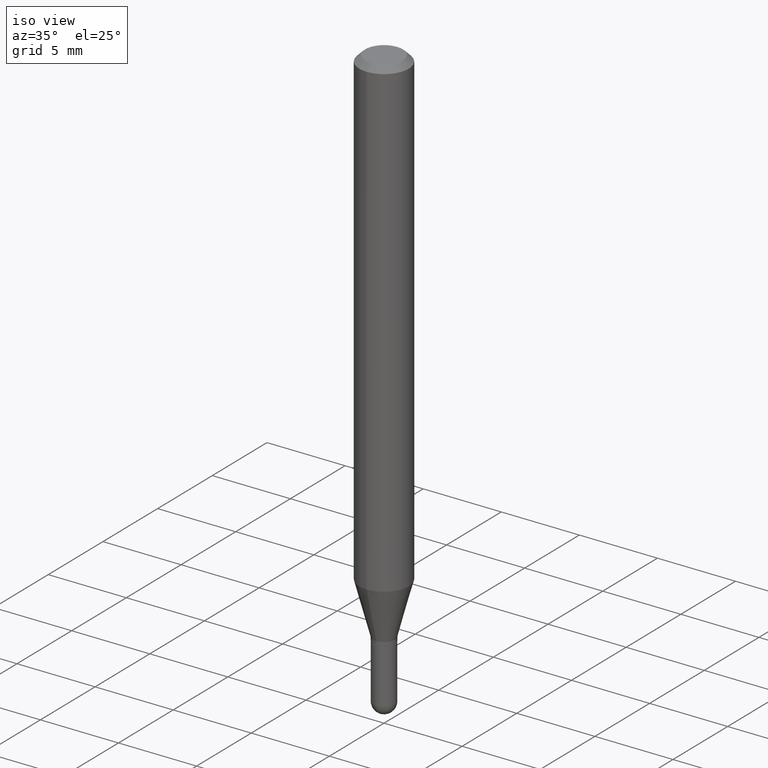
[diagram: clean part render]
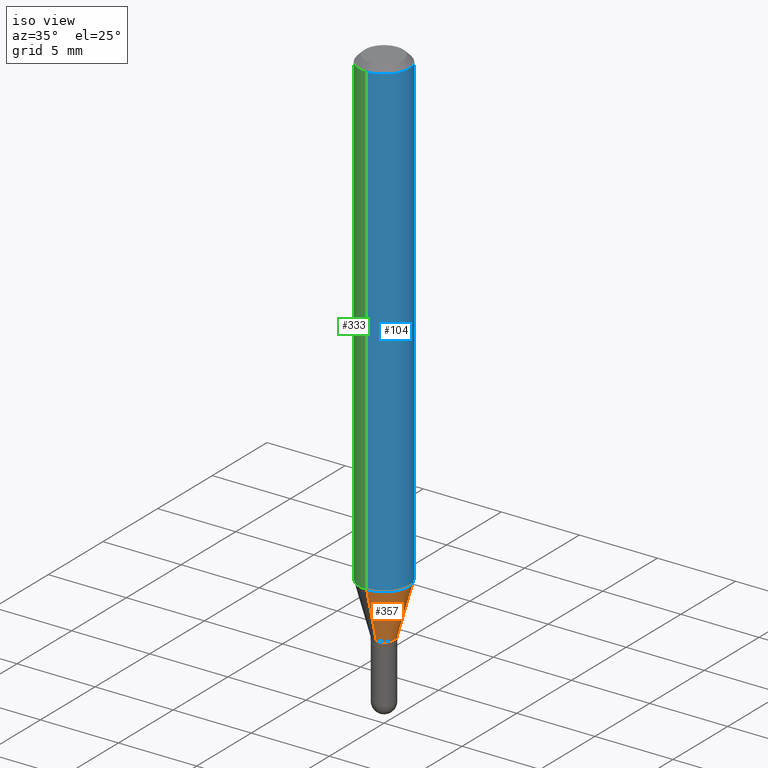
[diagram: same view with three faces highlighted in distinct colors, each labeled with its STEP entity id]
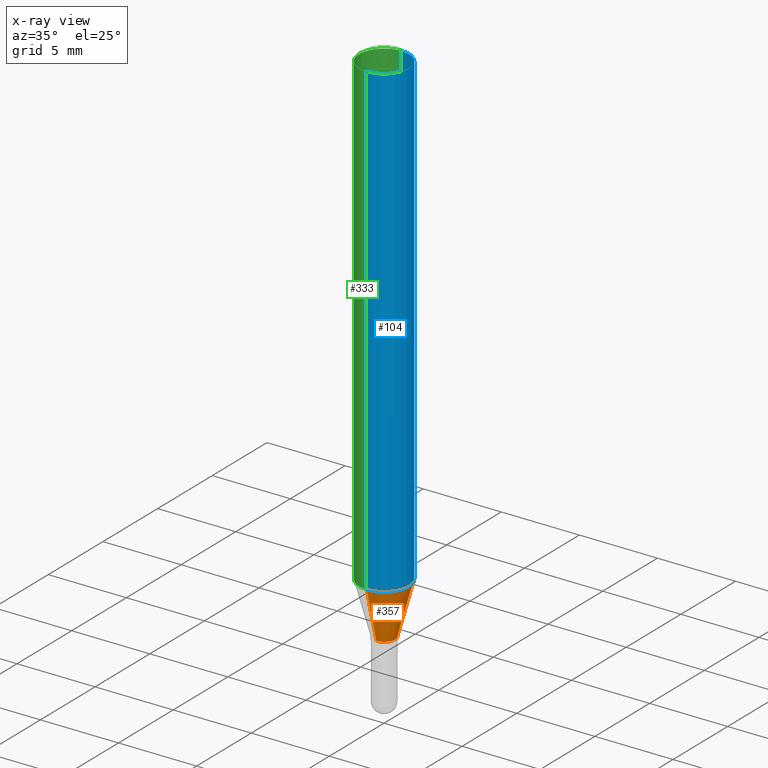
[diagram: x-ray of the same camera — body ghosted, the three highlighted faces saturated]
A machine part, iso view with three faces highlighted in distinct colors.
The next image is the same camera in x-ray (body ghosted, the three faces saturated) — at least one of them is partly hidden behind the body in this view.
Their STEP definitions:

[orange] entity #357 — the highlighted conical surface has half-angle 15 deg.
#5 = AXIS2_PLACEMENT_3D ( 'NONE', #184, #151, #292 ) ;
#14 = CARTESIAN_POINT ( 'NONE',  ( 3.240249888014285312E-29, -4.626207446974673812E-15, -1.325000000000000400 ) ) ;
#16 = ORIENTED_EDGE ( 'NONE', *, *, #431, .T. ) ;
#31 = DIRECTION ( 'NONE',  ( 1.839019923739605048E-15, 0.2588190451025256245, 0.9659258262890669799 ) ) ;
#49 = LINE ( 'NONE', #51, #285 ) ;
#51 = CARTESIAN_POINT ( 'NONE',  ( -1.920314736363393602E-16, -0.02750000000000454858, -1.325000000000000400 ) ) ;
#97 = EDGE_CURVE ( 'NONE', #371, #273, #49, .T. ) ;
#113 = ORIENTED_EDGE ( 'NONE', *, *, #97, .F. ) ;
#147 = DIRECTION ( 'NONE',  ( -2.445471613595686060E-29, 3.491477318471450825E-15, 1.000000000000000000 ) ) ;
#151 = DIRECTION ( 'NONE',  ( -2.445471613595686060E-29, 3.491477318471450825E-15, 1.000000000000000000 ) ) ;
#155 = CARTESIAN_POINT ( 'NONE',  ( 1.953992523340593531E-16, 0.02749999999999529210, -1.325000000000000400 ) ) ;
#164 = CONICAL_SURFACE ( 'NONE', #481, 0.02749999999999992034, 0.2617993877991509621 ) ;
#169 = ORIENTED_EDGE ( 'NONE', *, *, #501, .T. ) ;
#179 = DIRECTION ( 'NONE',  ( -2.445471613595686060E-29, 3.491477318471450825E-15, 1.000000000000000000 ) ) ;
#184 = CARTESIAN_POINT ( 'NONE',  ( 2.920818037150057655E-29, -4.170144470864333140E-15, -1.194378221735090229 ) ) ;
#218 = CARTESIAN_POINT ( 'NONE',  ( -4.364351673553625802E-16, -0.06250000000000419109, -1.194378221735090007 ) ) ;
#221 = LINE ( 'NONE', #155, #309 ) ;
#223 = CARTESIAN_POINT ( 'NONE',  ( 3.240249888014285312E-29, -4.626207446974673812E-15, -1.325000000000000400 ) ) ;
#228 = DIRECTION ( 'NONE',  ( -6.982962677686265922E-15, -1.000000000000000000, 0.000000000000000000 ) ) ;
#270 = CIRCLE ( 'NONE', #403, 0.02749999999999992034 ) ;
#273 = VERTEX_POINT ( 'NONE', #218 ) ;
#281 = EDGE_LOOP ( 'NONE', ( #169, #16, #435, #113 ) ) ;
#285 = VECTOR ( 'NONE', #312, 39.37007874015748854 ) ;
#292 = DIRECTION ( 'NONE',  ( -6.982962677686265922E-15, -1.000000000000000000, 4.370956789862821150E-15 ) ) ;
#309 = VECTOR ( 'NONE', #31, 39.37007874015748143 ) ;
#312 = DIRECTION ( 'NONE',  ( -1.807323732225334872E-15, -0.2588190451025188521, 0.9659258262890687563 ) ) ;
#344 = VERTEX_POINT ( 'NONE', #485 ) ;
#352 = FACE_OUTER_BOUND ( 'NONE', #281, .T. ) ;
#357 = ADVANCED_FACE ( 'NONE', ( #352 ), #164, .T. ) ;
#371 = VERTEX_POINT ( 'NONE', #486 ) ;
#391 = CIRCLE ( 'NONE', #5, 0.06250000000000000000 ) ;
#403 = AXIS2_PLACEMENT_3D ( 'NONE', #223, #147, #228 ) ;
#419 = EDGE_CURVE ( 'NONE', #273, #484, #391, .T. ) ;
#431 = EDGE_CURVE ( 'NONE', #344, #484, #221, .T. ) ;
#435 = ORIENTED_EDGE ( 'NONE', *, *, #419, .F. ) ;
#441 = DIRECTION ( 'NONE',  ( -6.982962677686265922E-15, -1.000000000000000000, 0.000000000000000000 ) ) ;
#481 = AXIS2_PLACEMENT_3D ( 'NONE', #14, #179, #441 ) ;
#484 = VERTEX_POINT ( 'NONE', #494 ) ;
#485 = CARTESIAN_POINT ( 'NONE',  ( 3.197442310920756402E-16, 0.02749999999999529210, -1.325000000000000400 ) ) ;
#486 = CARTESIAN_POINT ( 'NONE',  ( -1.920314736363393602E-16, -0.02750000000000454858, -1.325000000000000400 ) ) ;
#494 = CARTESIAN_POINT ( 'NONE',  ( 4.440892098500915082E-16, 0.06249999999999580891, -1.194378221735090451 ) ) ;
#501 = EDGE_CURVE ( 'NONE', #371, #344, #270, .T. ) ;

[blue] entity #104 — the highlighted cylindrical surface (edge-blend (fillet) strip) has radius 1.5875 mm, axis along (-0, 0, 1).
#5 = AXIS2_PLACEMENT_3D ( 'NONE', #184, #151, #292 ) ;
#13 = VERTEX_POINT ( 'NONE', #336 ) ;
#39 = CARTESIAN_POINT ( 'NONE',  ( 0.000000000000000000, 0.000000000000000000, 0.000000000000000000 ) ) ;
#82 = DIRECTION ( 'NONE',  ( -2.445471613595686060E-29, 3.491477318471450825E-15, 1.000000000000000000 ) ) ;
#96 = VERTEX_POINT ( 'NONE', #478 ) ;
#104 = ADVANCED_FACE ( 'NONE', ( #475 ), #265, .T. ) ;
#141 = EDGE_CURVE ( 'NONE', #484, #96, #340, .T. ) ;
#151 = DIRECTION ( 'NONE',  ( -2.445471613595686060E-29, 3.491477318471450825E-15, 1.000000000000000000 ) ) ;
#178 = CARTESIAN_POINT ( 'NONE',  ( -4.364351673553916201E-16, -0.06250000000000000000, 2.182173324044656766E-16 ) ) ;
#182 = LINE ( 'NONE', #178, #208 ) ;
#184 = CARTESIAN_POINT ( 'NONE',  ( 2.920818037150057655E-29, -4.170144470864333140E-15, -1.194378221735090229 ) ) ;
#208 = VECTOR ( 'NONE', #487, 39.37007874015748143 ) ;
#218 = CARTESIAN_POINT ( 'NONE',  ( -4.364351673553625802E-16, -0.06250000000000419109, -1.194378221735090007 ) ) ;
#222 = EDGE_CURVE ( 'NONE', #273, #13, #182, .T. ) ;
#232 = EDGE_LOOP ( 'NONE', ( #408, #305, #247, #244 ) ) ;
#244 = ORIENTED_EDGE ( 'NONE', *, *, #222, .F. ) ;
#247 = ORIENTED_EDGE ( 'NONE', *, *, #446, .F. ) ;
#256 = AXIS2_PLACEMENT_3D ( 'NONE', #504, #327, #295 ) ;
#265 = CYLINDRICAL_SURFACE ( 'NONE', #436, 0.06250000000000000000 ) ;
#273 = VERTEX_POINT ( 'NONE', #218 ) ;
#292 = DIRECTION ( 'NONE',  ( -6.982962677686265922E-15, -1.000000000000000000, 4.370956789862821150E-15 ) ) ;
#295 = DIRECTION ( 'NONE',  ( -6.982962677686265922E-15, -1.000000000000000000, 3.483106191921935554E-15 ) ) ;
#305 = ORIENTED_EDGE ( 'NONE', *, *, #141, .T. ) ;
#307 = VECTOR ( 'NONE', #348, 39.37007874015748143 ) ;
#311 = CARTESIAN_POINT ( 'NONE',  ( 4.440892098500625669E-16, 0.06250000000000000000, -2.182173324044656766E-16 ) ) ;
#327 = DIRECTION ( 'NONE',  ( -2.445471613595686060E-29, 3.491477318471450825E-15, 1.000000000000000000 ) ) ;
#336 = CARTESIAN_POINT ( 'NONE',  ( -4.364351673553912750E-16, -0.06250000000000005551, -0.01500000000000011047 ) ) ;
#340 = LINE ( 'NONE', #311, #307 ) ;
#348 = DIRECTION ( 'NONE',  ( -2.445471613595686060E-29, 3.491477318471451219E-15, 1.000000000000000000 ) ) ;
#391 = CIRCLE ( 'NONE', #5, 0.06250000000000000000 ) ;
#408 = ORIENTED_EDGE ( 'NONE', *, *, #419, .T. ) ;
#419 = EDGE_CURVE ( 'NONE', #273, #484, #391, .T. ) ;
#436 = AXIS2_PLACEMENT_3D ( 'NONE', #39, #82, #472 ) ;
#446 = EDGE_CURVE ( 'NONE', #13, #96, #470, .T. ) ;
#470 = CIRCLE ( 'NONE', #256, 0.06250000000000000000 ) ;
#472 = DIRECTION ( 'NONE',  ( -6.982962677686265922E-15, -1.000000000000000000, 3.491477318471450825E-15 ) ) ;
#475 = FACE_OUTER_BOUND ( 'NONE', #232, .T. ) ;
#478 = CARTESIAN_POINT ( 'NONE',  ( 4.440892098500920012E-16, 0.06249999999999995143, -0.01500000000000054588 ) ) ;
#484 = VERTEX_POINT ( 'NONE', #494 ) ;
#487 = DIRECTION ( 'NONE',  ( -2.445471613595686060E-29, 3.491477318471451219E-15, 1.000000000000000000 ) ) ;
#494 = CARTESIAN_POINT ( 'NONE',  ( 4.440892098500915082E-16, 0.06249999999999580891, -1.194378221735090451 ) ) ;
#504 = CARTESIAN_POINT ( 'NONE',  ( 3.668207420393609823E-31, -5.237215977707291288E-17, -0.01500000000000032904 ) ) ;

[green] entity #333 — the highlighted cylindrical surface (edge-blend (fillet) strip) has radius 1.5875 mm, axis along (-0, 0, 1).
#13 = VERTEX_POINT ( 'NONE', #336 ) ;
#20 = FACE_OUTER_BOUND ( 'NONE', #72, .T. ) ;
#22 = CYLINDRICAL_SURFACE ( 'NONE', #316, 0.06250000000000000000 ) ;
#36 = ORIENTED_EDGE ( 'NONE', *, *, #417, .F. ) ;
#72 = EDGE_LOOP ( 'NONE', ( #456, #493, #399, #36 ) ) ;
#96 = VERTEX_POINT ( 'NONE', #478 ) ;
#105 = DIRECTION ( 'NONE',  ( -2.445471613595686060E-29, 3.491477318471450825E-15, 1.000000000000000000 ) ) ;
#139 = DIRECTION ( 'NONE',  ( -2.445471613595686060E-29, 3.491477318471450825E-15, 1.000000000000000000 ) ) ;
#141 = EDGE_CURVE ( 'NONE', #484, #96, #340, .T. ) ;
#173 = DIRECTION ( 'NONE',  ( -6.982962677686265922E-15, -1.000000000000000000, 4.370956789862821150E-15 ) ) ;
#178 = CARTESIAN_POINT ( 'NONE',  ( -4.364351673553916201E-16, -0.06250000000000000000, 2.182173324044656766E-16 ) ) ;
#182 = LINE ( 'NONE', #178, #208 ) ;
#192 = EDGE_CURVE ( 'NONE', #484, #273, #219, .T. ) ;
#208 = VECTOR ( 'NONE', #487, 39.37007874015748143 ) ;
#216 = DIRECTION ( 'NONE',  ( -6.982962677686265922E-15, -1.000000000000000000, 3.491477318471450825E-15 ) ) ;
#218 = CARTESIAN_POINT ( 'NONE',  ( -4.364351673553625802E-16, -0.06250000000000419109, -1.194378221735090007 ) ) ;
#219 = CIRCLE ( 'NONE', #413, 0.06250000000000000000 ) ;
#222 = EDGE_CURVE ( 'NONE', #273, #13, #182, .T. ) ;
#249 = CIRCLE ( 'NONE', #322, 0.06250000000000000000 ) ;
#273 = VERTEX_POINT ( 'NONE', #218 ) ;
#307 = VECTOR ( 'NONE', #348, 39.37007874015748143 ) ;
#311 = CARTESIAN_POINT ( 'NONE',  ( 4.440892098500625669E-16, 0.06250000000000000000, -2.182173324044656766E-16 ) ) ;
#316 = AXIS2_PLACEMENT_3D ( 'NONE', #398, #105, #216 ) ;
#322 = AXIS2_PLACEMENT_3D ( 'NONE', #334, #502, #335 ) ;
#333 = ADVANCED_FACE ( 'NONE', ( #20 ), #22, .T. ) ;
#334 = CARTESIAN_POINT ( 'NONE',  ( 3.668207420393609823E-31, -5.237215977707291288E-17, -0.01500000000000032904 ) ) ;
#335 = DIRECTION ( 'NONE',  ( -6.982962677686265922E-15, -1.000000000000000000, 3.483106191921935554E-15 ) ) ;
#336 = CARTESIAN_POINT ( 'NONE',  ( -4.364351673553912750E-16, -0.06250000000000005551, -0.01500000000000011047 ) ) ;
#340 = LINE ( 'NONE', #311, #307 ) ;
#348 = DIRECTION ( 'NONE',  ( -2.445471613595686060E-29, 3.491477318471451219E-15, 1.000000000000000000 ) ) ;
#398 = CARTESIAN_POINT ( 'NONE',  ( 0.000000000000000000, 0.000000000000000000, 0.000000000000000000 ) ) ;
#399 = ORIENTED_EDGE ( 'NONE', *, *, #222, .T. ) ;
#405 = CARTESIAN_POINT ( 'NONE',  ( 2.920818037150057655E-29, -4.170144470864333140E-15, -1.194378221735090229 ) ) ;
#413 = AXIS2_PLACEMENT_3D ( 'NONE', #405, #139, #173 ) ;
#417 = EDGE_CURVE ( 'NONE', #96, #13, #249, .T. ) ;
#456 = ORIENTED_EDGE ( 'NONE', *, *, #141, .F. ) ;
#478 = CARTESIAN_POINT ( 'NONE',  ( 4.440892098500920012E-16, 0.06249999999999995143, -0.01500000000000054588 ) ) ;
#484 = VERTEX_POINT ( 'NONE', #494 ) ;
#487 = DIRECTION ( 'NONE',  ( -2.445471613595686060E-29, 3.491477318471451219E-15, 1.000000000000000000 ) ) ;
#493 = ORIENTED_EDGE ( 'NONE', *, *, #192, .T. ) ;
#494 = CARTESIAN_POINT ( 'NONE',  ( 4.440892098500915082E-16, 0.06249999999999580891, -1.194378221735090451 ) ) ;
#502 = DIRECTION ( 'NONE',  ( -2.445471613595686060E-29, 3.491477318471450825E-15, 1.000000000000000000 ) ) ;